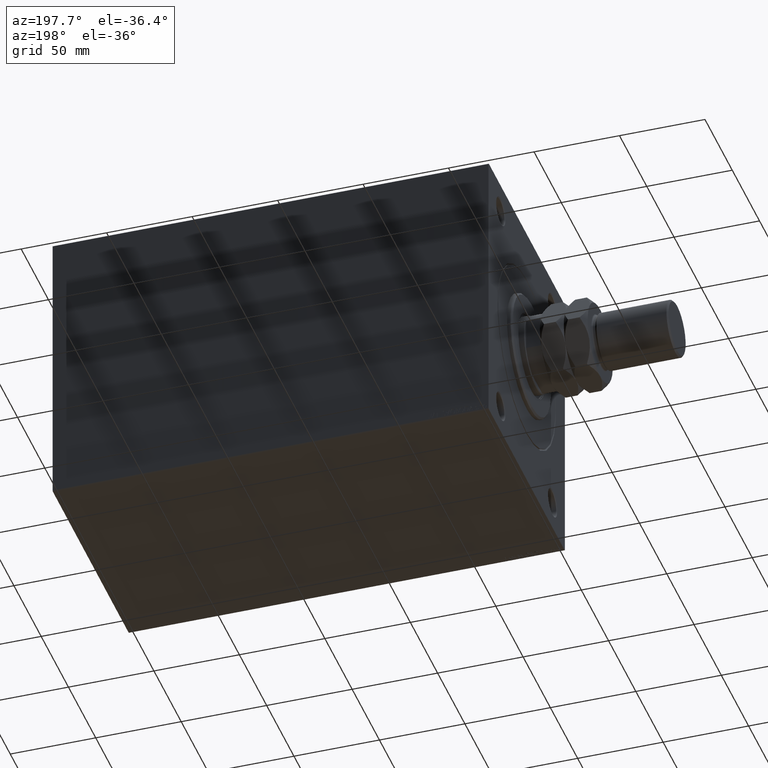
[diagram: clean part render]
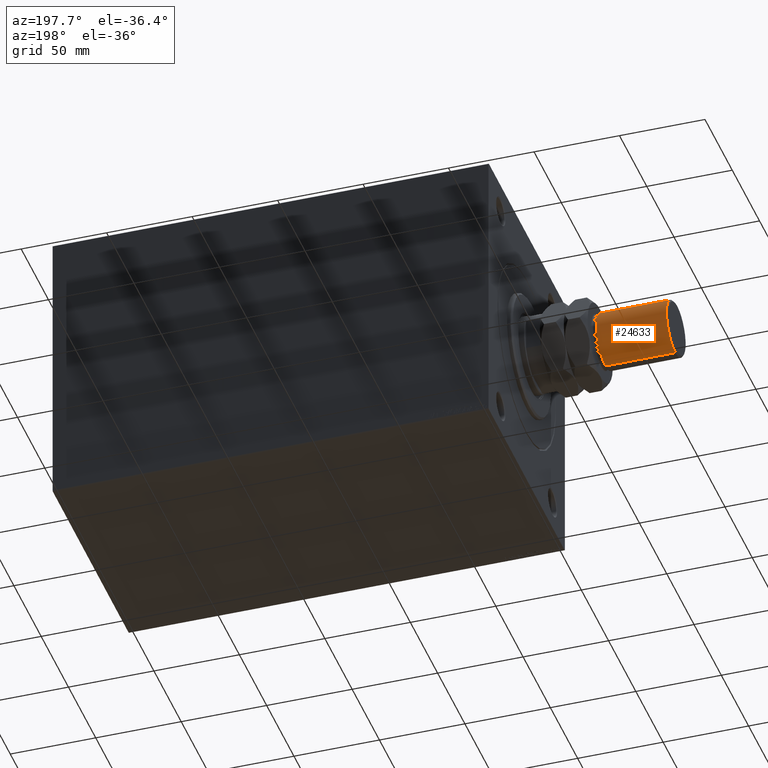
[diagram: same view with one face highlighted and labeled with its STEP entity id]
A machine part, auxiliary view. The second image highlights one B-rep face of the part: STEP entity #24633.
In plain terms, the highlighted cylindrical surface (edge-blend (fillet) strip) has radius 16.5 mm, axis along (1, -0, -0).
Its self-contained STEP definition (entity closure, byte-faithful):
#145 = VERTEX_POINT ( 'NONE', #30703 ) ;
#1014 = AXIS2_PLACEMENT_3D ( 'NONE', #37892, #41594, #38352 ) ;
#1352 = DIRECTION ( 'NONE',  ( -1.000000000000000000, 0.000000000000000000, 0.000000000000000000 ) ) ;
#1399 = ORIENTED_EDGE ( 'NONE', *, *, #37956, .T. ) ;
#1765 = DIRECTION ( 'NONE',  ( 0.000000000000000000, 0.000000000000000000, -1.000000000000000000 ) ) ;
#2243 = DIRECTION ( 'NONE',  ( -0.000000000000000000, -0.000000000000000000, -1.000000000000000000 ) ) ;
#2805 = AXIS2_PLACEMENT_3D ( 'NONE', #8307, #28713, #1352 ) ;
#3073 = ORIENTED_EDGE ( 'NONE', *, *, #13340, .T. ) ;
#6411 = CARTESIAN_POINT ( 'NONE',  ( 16.50000000000000000, 2.020667218593133100E-15, 73.00000000000000000 ) ) ;
#6930 = EDGE_LOOP ( 'NONE', ( #1399, #37869, #3073, #26002 ) ) ;
#7161 = CARTESIAN_POINT ( 'NONE',  ( 16.50000000000000000, 2.020667218593133100E-15, 72.00000000000000000 ) ) ;
#8307 = CARTESIAN_POINT ( 'NONE',  ( 0.000000000000000000, 0.000000000000000000, 73.00000000000000000 ) ) ;
#10886 = VERTEX_POINT ( 'NONE', #7161 ) ;
#12439 = EDGE_CURVE ( 'NONE', #145, #37532, #15655, .T. ) ;
#13120 = LINE ( 'NONE', #6411, #31448 ) ;
#13340 = EDGE_CURVE ( 'NONE', #33396, #37532, #20232, .T. ) ;
#15655 = LINE ( 'NONE', #15880, #43893 ) ;
#15880 = CARTESIAN_POINT ( 'NONE',  ( -16.50000000000000000, 0.000000000000000000, 73.00000000000000000 ) ) ;
#17118 = EDGE_CURVE ( 'NONE', #10886, #33396, #13120, .T. ) ;
#19753 = CARTESIAN_POINT ( 'NONE',  ( -16.50000000000000000, 0.000000000000000000, 30.99999999999998579 ) ) ;
#20053 = CARTESIAN_POINT ( 'NONE',  ( 0.000000000000000000, 0.000000000000000000, 72.00000000000000000 ) ) ;
#20232 = CIRCLE ( 'NONE', #1014, 16.50000000000000000 ) ;
#21576 = AXIS2_PLACEMENT_3D ( 'NONE', #20053, #1765, #37216 ) ;
#22169 = CARTESIAN_POINT ( 'NONE',  ( 16.50000000000000000, 2.020667218593133100E-15, 30.99999999999998579 ) ) ;
#24633 = ADVANCED_FACE ( 'NONE', ( #32417 ), #36343, .T. ) ;
#26002 = ORIENTED_EDGE ( 'NONE', *, *, #12439, .F. ) ;
#28713 = DIRECTION ( 'NONE',  ( -0.000000000000000000, -0.000000000000000000, -1.000000000000000000 ) ) ;
#30703 = CARTESIAN_POINT ( 'NONE',  ( -16.50000000000000000, 0.000000000000000000, 72.00000000000000000 ) ) ;
#31448 = VECTOR ( 'NONE', #2243, 1000.000000000000000 ) ;
#32417 = FACE_OUTER_BOUND ( 'NONE', #6930, .T. ) ;
#33273 = DIRECTION ( 'NONE',  ( -0.000000000000000000, -0.000000000000000000, -1.000000000000000000 ) ) ;
#33396 = VERTEX_POINT ( 'NONE', #22169 ) ;
#36343 = CYLINDRICAL_SURFACE ( 'NONE', #2805, 16.50000000000000000 ) ;
#37216 = DIRECTION ( 'NONE',  ( 1.000000000000000000, 0.000000000000000000, 0.000000000000000000 ) ) ;
#37532 = VERTEX_POINT ( 'NONE', #19753 ) ;
#37869 = ORIENTED_EDGE ( 'NONE', *, *, #17118, .T. ) ;
#37892 = CARTESIAN_POINT ( 'NONE',  ( 0.000000000000000000, 0.000000000000000000, 30.99999999999998579 ) ) ;
#37956 = EDGE_CURVE ( 'NONE', #145, #10886, #41558, .T. ) ;
#38352 = DIRECTION ( 'NONE',  ( 1.000000000000000000, 0.000000000000000000, 0.000000000000000000 ) ) ;
#41558 = CIRCLE ( 'NONE', #21576, 16.50000000000000000 ) ;
#41594 = DIRECTION ( 'NONE',  ( -0.000000000000000000, -0.000000000000000000, 1.000000000000000000 ) ) ;
#43893 = VECTOR ( 'NONE', #33273, 1000.000000000000000 ) ;